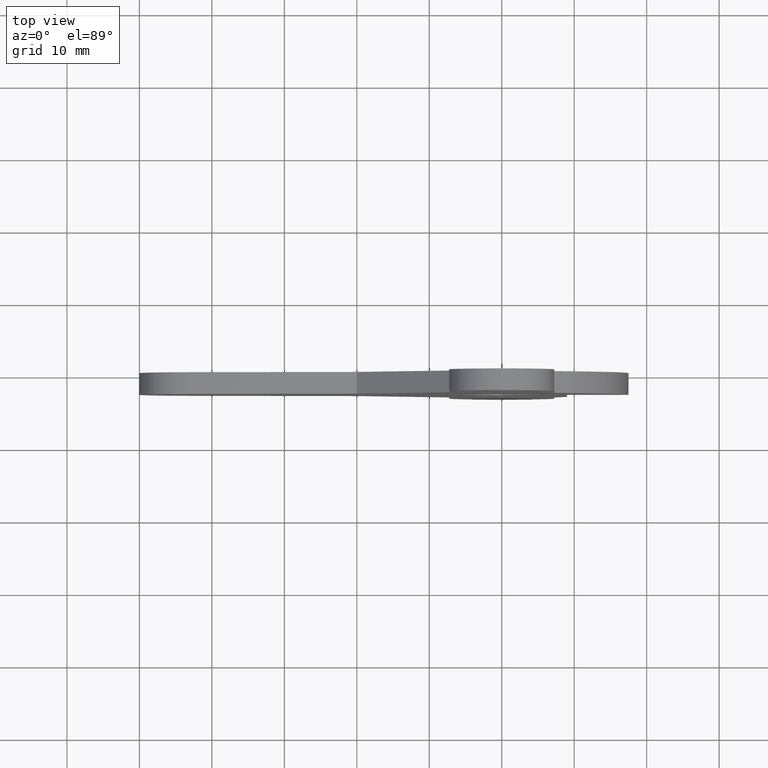
[diagram: clean part render]
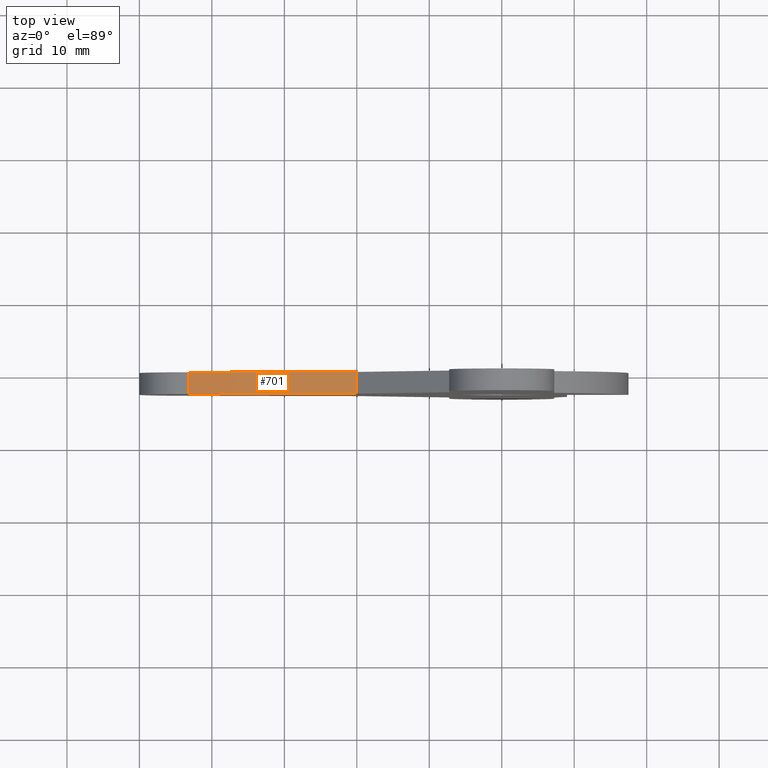
[diagram: same view with one face highlighted and labeled with its STEP entity id]
A machine part, top view. The second image highlights one B-rep face of the part: STEP entity #701.
In plain terms, the highlighted face is a freeform B-spline surface patch.
Its self-contained STEP definition (entity closure, byte-faithful):
#51=CARTESIAN_POINT('',(-20.0,0.0,9.499999999999801));
#52=VERTEX_POINT('',#51);
#170=CARTESIAN_POINT('',(-43.154600000000002,0.0,7.471399999999900));
#171=VERTEX_POINT('',#170);
#187=CARTESIAN_POINT('',(-20.0,0.0,9.499999999999801));
#188=CARTESIAN_POINT('',(-43.154600000000002,0.0,7.471399999999900));
#189=QUASI_UNIFORM_CURVE('',1,(#187,#188),.UNSPECIFIED.,.F.,.U.);
#190=EDGE_CURVE('',#52,#171,#189,.T.);
#232=CARTESIAN_POINT('',(-20.0,-3.0,9.499999999999801));
#233=VERTEX_POINT('',#232);
#239=CARTESIAN_POINT('',(-43.154600000000002,-3.0,7.471399999999900));
#240=VERTEX_POINT('',#239);
#241=CARTESIAN_POINT('',(-20.0,-3.0,9.499999999999801));
#242=CARTESIAN_POINT('',(-43.154600000000002,-3.0,7.471399999999900));
#243=QUASI_UNIFORM_CURVE('',1,(#241,#242),.UNSPECIFIED.,.F.,.U.);
#244=EDGE_CURVE('',#233,#240,#243,.T.);
#678=CARTESIAN_POINT('',(-43.154600000000002,-3.0,7.471399999999900));
#679=CARTESIAN_POINT('',(-43.154600000000002,0.0,7.471399999999900));
#680=QUASI_UNIFORM_CURVE('',1,(#678,#679),.UNSPECIFIED.,.F.,.U.);
#681=EDGE_CURVE('',#240,#171,#680,.T.);
#686=CARTESIAN_POINT('',(-18.843427857602599,-3.149849994185419,9.601328558820391));
#687=CARTESIAN_POINT('',(-44.311171107306130,-3.149849994185419,7.370071531864791));
#688=CARTESIAN_POINT('',(-18.843427857602599,0.149850074651689,9.601328558820391));
#689=CARTESIAN_POINT('',(-44.311171107306130,0.149850074651689,7.370071531864791));
#690=B_SPLINE_SURFACE_WITH_KNOTS('',1,1,((#686,#688),(#687,#689)),.UNSPECIFIED.,.F.,.F.,.U.,(2,2),(2,2),(0.0,25.565297849881549),(0.0,3.299700068837107),.UNSPECIFIED.);
#691=ORIENTED_EDGE('',*,*,#190,.T.);
#692=ORIENTED_EDGE('',*,*,#681,.F.);
#693=ORIENTED_EDGE('',*,*,#244,.F.);
#694=CARTESIAN_POINT('',(-20.0,-3.0,9.499999999999801));
#695=CARTESIAN_POINT('',(-20.0,0.0,9.499999999999801));
#696=QUASI_UNIFORM_CURVE('',1,(#694,#695),.UNSPECIFIED.,.F.,.U.);
#697=EDGE_CURVE('',#233,#52,#696,.T.);
#698=ORIENTED_EDGE('',*,*,#697,.T.);
#699=EDGE_LOOP('',(#691,#692,#693,#698));
#700=FACE_OUTER_BOUND('',#699,.T.);
#701=ADVANCED_FACE('',(#700),#690,.F.);